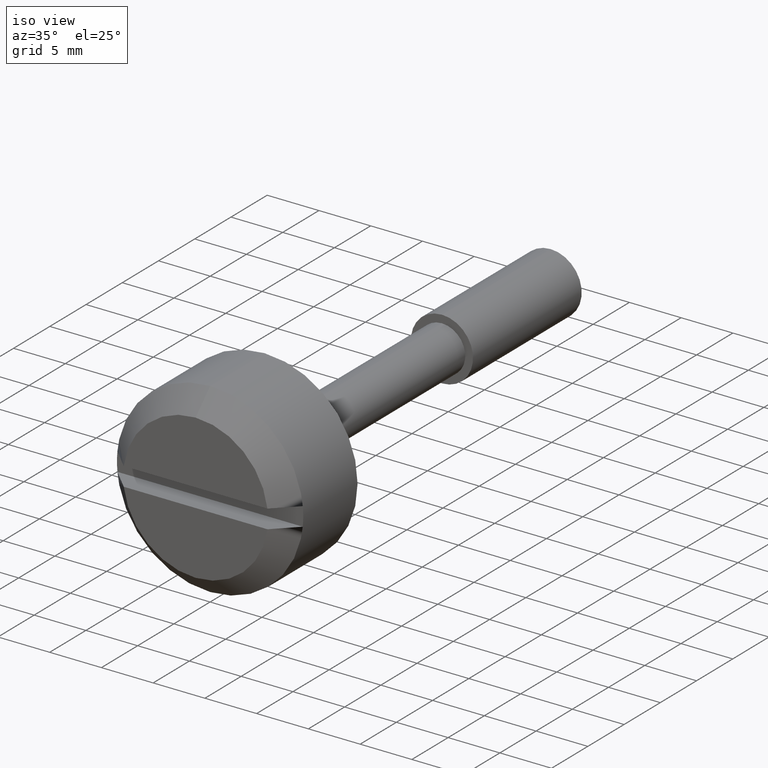
[diagram: clean part render]
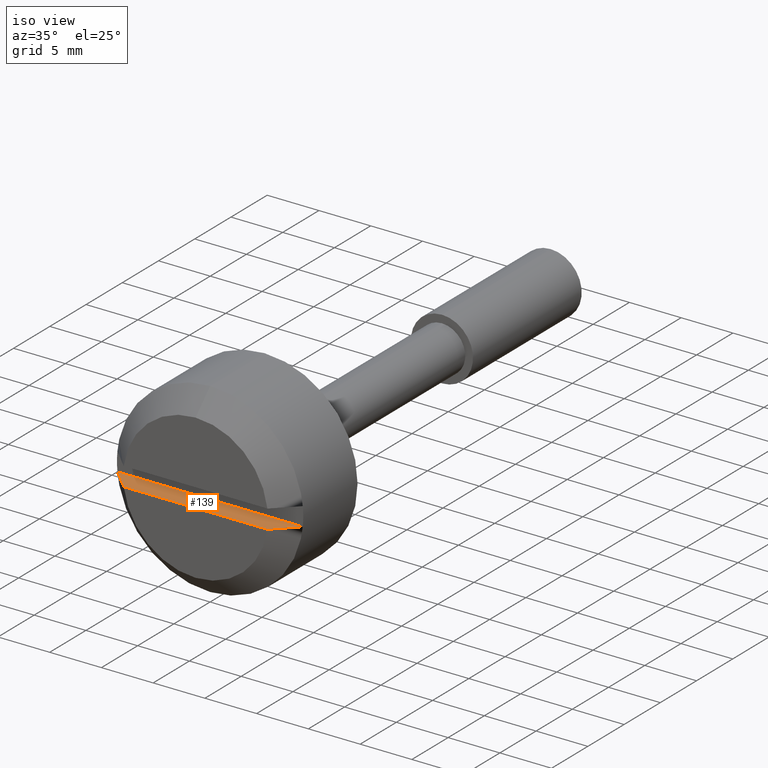
[diagram: same view with one face highlighted and labeled with its STEP entity id]
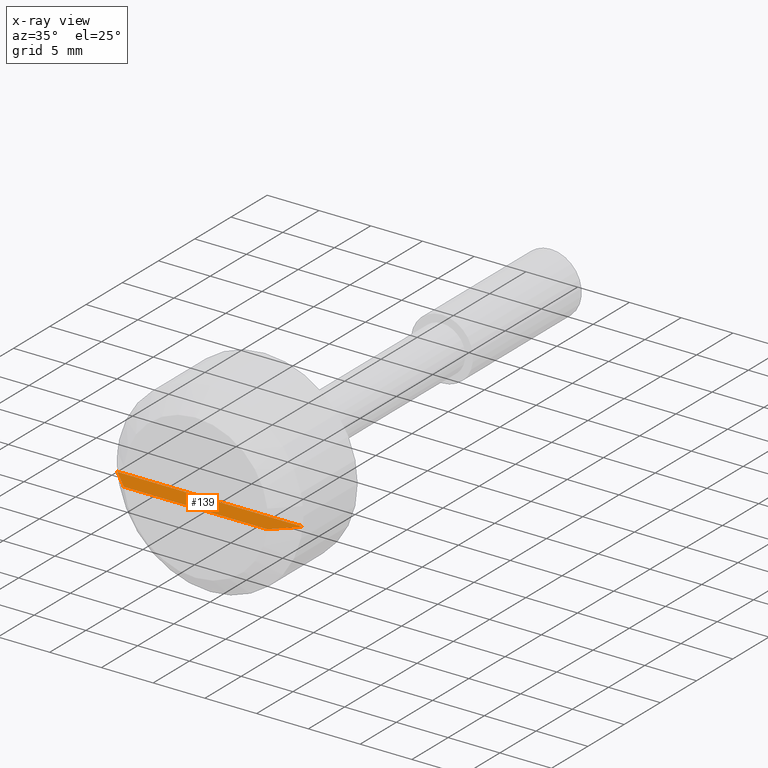
[diagram: x-ray of the same camera — body ghosted, the highlighted face saturated]
A machine part, iso view. The second image highlights one B-rep face of the part: STEP entity #139.
The next image is the same camera in x-ray: the body ghosted, the highlighted face saturated — about 0% of this face is hidden behind the body in this view.
In plain terms, the highlighted planar face has unit normal (0, 0, 1).
Its self-contained STEP definition (entity closure, byte-faithful):
#139=ADVANCED_FACE('',(#430),#429,.T.);
#429=PLANE('',#722);
#430=FACE_OUTER_BOUND('',#723,.T.);
#719=CARTESIAN_POINT('',(-1.21998900000E+01,-1.07457437162E+01,-9.00000000000E-01));
#720=DIRECTION('',(0.00000000000E+00,0.00000000000E+00,1.00000000000E+00));
#721=DIRECTION('',(1.00000000000E+00,0.00000000000E+00,0.00000000000E+00));
#722=AXIS2_PLACEMENT_3D('',#719,#720,#721);
#723=EDGE_LOOP('',(#964,#965,#966,#967));
#964=ORIENTED_EDGE('',*,*,#1106,.F.);
#965=ORIENTED_EDGE('',*,*,#1108,.T.);
#966=ORIENTED_EDGE('',*,*,#1098,.T.);
#967=ORIENTED_EDGE('',*,*,#1109,.T.);
#1098=EDGE_CURVE('',#1574,#1582,#1589,.T.);
#1106=EDGE_CURVE('',#1636,#1643,#1644,.T.);
#1108=EDGE_CURVE('',#1636,#1574,#1656,.T.);
#1109=EDGE_CURVE('',#1582,#1643,#1662,.T.);
#1574=VERTEX_POINT('',#2071);
#1582=VERTEX_POINT('',#2077);
#1589=LINE('',#2082,#2083);
#1636=VERTEX_POINT('',#2112);
#1643=VERTEX_POINT('',#2117);
#1644=LINE('',#2118,#2119);
#1656=(BOUNDED_CURVE() B_SPLINE_CURVE(3,(#2125,#2126,#2127,#2128),.UNSPECIFIED.,.F.,.F.) B_SPLINE_CURVE_WITH_KNOTS((4,4),(1.52743872715E-02,1.81118693173E-02),.UNSPECIFIED.) CURVE() GEOMETRIC_REPRESENTATION_ITEM() RATIONAL_B_SPLINE_CURVE((1.00000000000E+00,1.00000000000E+00,1.00000000000E+00,1.00000000000E+00)) REPRESENTATION_ITEM('') );
#1662=(BOUNDED_CURVE() B_SPLINE_CURVE(3,(#2129,#2130,#2131,#2132),.UNSPECIFIED.,.F.,.F.) B_SPLINE_CURVE_WITH_KNOTS((4,4),(3.68298790015E-02,3.96928572528E-02),.UNSPECIFIED.) CURVE() GEOMETRIC_REPRESENTATION_ITEM() RATIONAL_B_SPLINE_CURVE((1.00000000000E+00,1.00000000000E+00,1.00000000000E+00,1.00000000000E+00)) REPRESENTATION_ITEM('') );
#2071=CARTESIAN_POINT('',(-1.19999000000E+01,6.94190175672E+00,-9.00000000000E-01));
#2077=CARTESIAN_POINT('',(-1.19999000000E+01,-6.94190175672E+00,-9.00000000000E-01));
#2082=CARTESIAN_POINT('',(-1.19999000000E+01,6.94190175672E+00,-9.00000000000E-01));
#2083=VECTOR('',#2084,1.38838035134E+01);
#2084=DIRECTION('',(0.00000000000E+00,-1.00000000000E+00,0.00000000000E+00));
#2112=CARTESIAN_POINT('',(-1.00000000000E+01,8.95478643017E+00,-9.00000000000E-01));
#2117=CARTESIAN_POINT('',(-1.00000000000E+01,-8.95478643017E+00,-9.00000000000E-01));
#2118=CARTESIAN_POINT('',(-1.00000000000E+01,8.95478643017E+00,-9.00000000000E-01));
#2119=VECTOR('',#2120,1.79095728603E+01);
#2120=DIRECTION('',(0.00000000000E+00,-1.00000000000E+00,0.00000000000E+00));
#2125=CARTESIAN_POINT('',(-1.00000000000E+01,8.95478643017E+00,-9.00000000000E-01));
#2126=CARTESIAN_POINT('',(-1.06671184612E+01,8.28430707420E+00,-9.00000000000E-01));
#2127=CARTESIAN_POINT('',(-1.13338914218E+01,7.61348430153E+00,-9.00000000000E-01));
#2128=CARTESIAN_POINT('',(-1.19999000000E+01,6.94190175672E+00,-9.00000000000E-01));
#2129=CARTESIAN_POINT('',(-1.19999000000E+01,-6.94190175672E+00,-9.00000000000E-01));
#2130=CARTESIAN_POINT('',(-1.13338924097E+01,-7.61348330534E+00,-9.00000000000E-01));
#2131=CARTESIAN_POINT('',(-1.06671192296E+01,-8.28430630192E+00,-9.00000000000E-01));
#2132=CARTESIAN_POINT('',(-1.00000000000E+01,-8.95478643017E+00,-9.00000000000E-01));